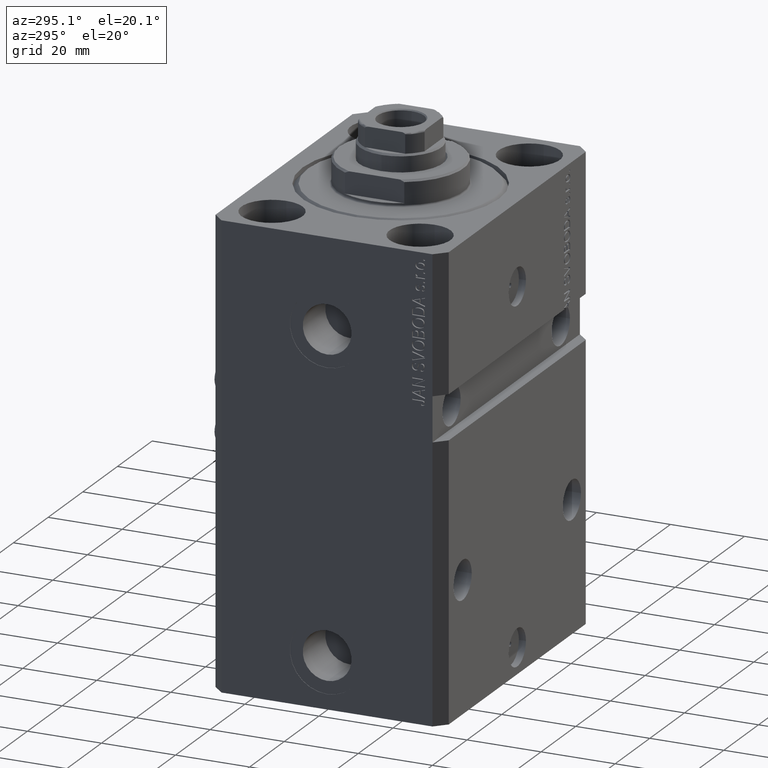
[diagram: clean part render]
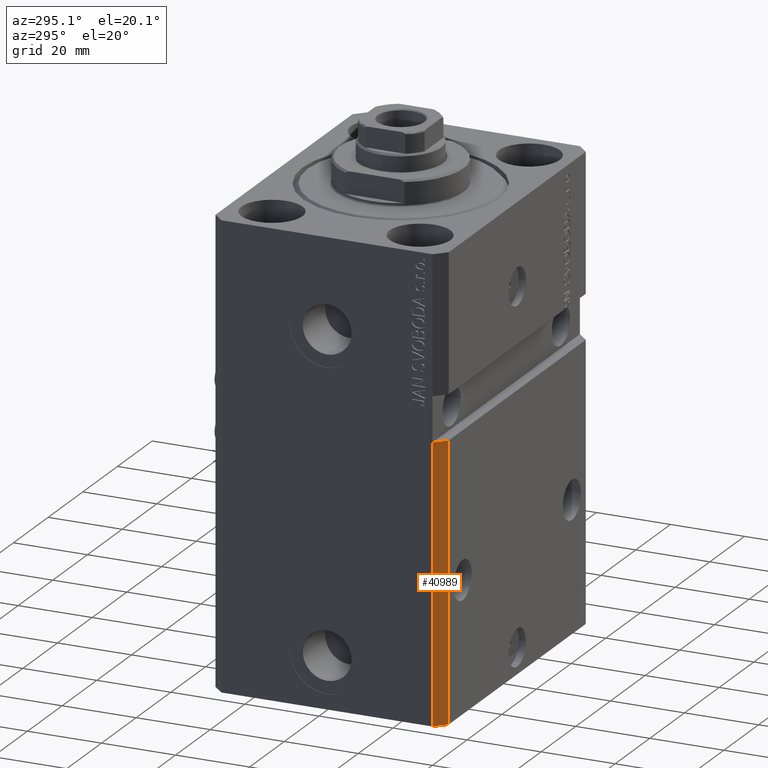
[diagram: same view with one face highlighted and labeled with its STEP entity id]
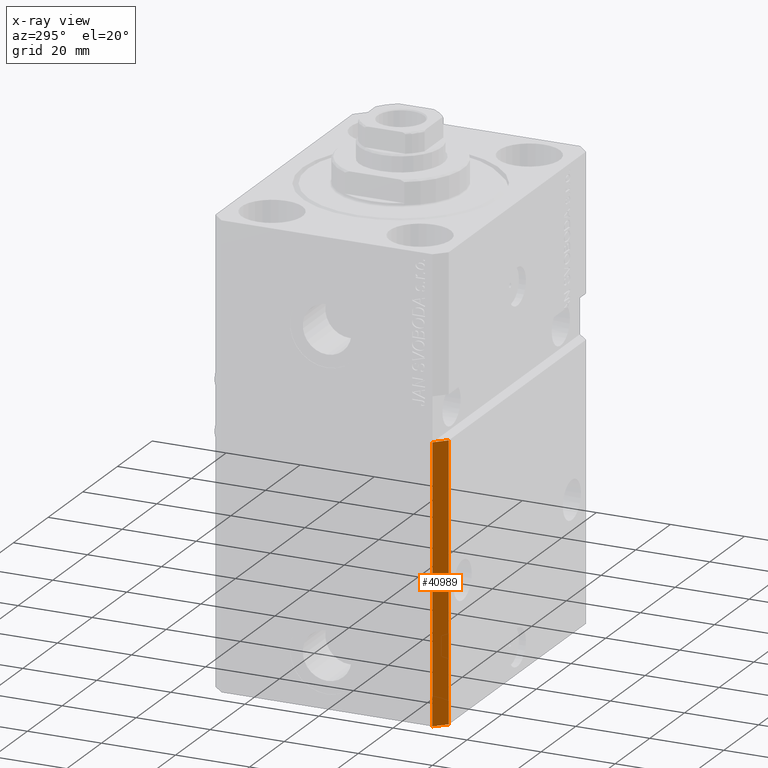
[diagram: x-ray of the same camera — body ghosted, the highlighted face saturated]
A machine part, auxiliary view. The second image highlights one B-rep face of the part: STEP entity #40989.
The next image is the same camera in x-ray: the body ghosted, the highlighted face saturated — about 0% of this face is hidden behind the body in this view.
In plain terms, the highlighted planar face has unit normal (-0.7071, -0.7071, 0).
Its self-contained STEP definition (entity closure, byte-faithful):
#744 = VERTEX_POINT ( 'NONE', #1247 ) ;
#1247 = CARTESIAN_POINT ( 'NONE',  ( -42.50000000000000000, -28.50000000000000000, -123.0000000000000000 ) ) ;
#1533 = VECTOR ( 'NONE', #12042, 1000.000000000000000 ) ;
#2229 = EDGE_CURVE ( 'NONE', #744, #43945, #18669, .T. ) ;
#3343 = CARTESIAN_POINT ( 'NONE',  ( -39.50000000000000711, -31.50000000000000000, -123.0000000000000000 ) ) ;
#3609 = PLANE ( 'NONE',  #14927 ) ;
#4903 = CARTESIAN_POINT ( 'NONE',  ( -42.50000000000000000, -28.50000000000000000, -123.0000000000000000 ) ) ;
#8968 = VECTOR ( 'NONE', #30504, 1000.000000000000000 ) ;
#10555 = LINE ( 'NONE', #47708, #18736 ) ;
#12042 = DIRECTION ( 'NONE',  ( 0.000000000000000000, 0.000000000000000000, 1.000000000000000000 ) ) ;
#12287 = EDGE_CURVE ( 'NONE', #12878, #36040, #46237, .T. ) ;
#12878 = VERTEX_POINT ( 'NONE', #39400 ) ;
#14927 = AXIS2_PLACEMENT_3D ( 'NONE', #18611, #48633, #29936 ) ;
#15261 = LINE ( 'NONE', #4903, #1533 ) ;
#15621 = ORIENTED_EDGE ( 'NONE', *, *, #24675, .T. ) ;
#17598 = ORIENTED_EDGE ( 'NONE', *, *, #2229, .T. ) ;
#18611 = CARTESIAN_POINT ( 'NONE',  ( -42.50000000000000000, -28.50000000000000000, -123.0000000000000000 ) ) ;
#18669 = LINE ( 'NONE', #48687, #27110 ) ;
#18736 = VECTOR ( 'NONE', #21606, 1000.000000000000000 ) ;
#19075 = EDGE_LOOP ( 'NONE', ( #42556, #44978, #17598, #15621 ) ) ;
#21606 = DIRECTION ( 'NONE',  ( 0.000000000000000000, 0.000000000000000000, 1.000000000000000000 ) ) ;
#24474 = CARTESIAN_POINT ( 'NONE',  ( -39.50000000000000000, -31.50000000000000711, -48.99999999999999289 ) ) ;
#24675 = EDGE_CURVE ( 'NONE', #43945, #36040, #10555, .T. ) ;
#26294 = DIRECTION ( 'NONE',  ( 0.7071067811865471286, -0.7071067811865479058, 0.000000000000000000 ) ) ;
#27110 = VECTOR ( 'NONE', #26294, 1000.000000000000000 ) ;
#29936 = DIRECTION ( 'NONE',  ( 0.7071067811865472397, -0.7071067811865479058, 0.000000000000000000 ) ) ;
#30504 = DIRECTION ( 'NONE',  ( 0.7071067811865472397, -0.7071067811865479058, 1.154479749032186513E-16 ) ) ;
#36040 = VERTEX_POINT ( 'NONE', #24474 ) ;
#37306 = FACE_OUTER_BOUND ( 'NONE', #19075, .T. ) ;
#37893 = CARTESIAN_POINT ( 'NONE',  ( -42.50000000000000711, -28.49999999999999289, -48.99999999999998579 ) ) ;
#39400 = CARTESIAN_POINT ( 'NONE',  ( -42.50000000000000000, -28.50000000000000711, -48.99999999999999289 ) ) ;
#40989 = ADVANCED_FACE ( 'NONE', ( #37306 ), #3609, .T. ) ;
#42556 = ORIENTED_EDGE ( 'NONE', *, *, #12287, .F. ) ;
#43758 = EDGE_CURVE ( 'NONE', #744, #12878, #15261, .T. ) ;
#43945 = VERTEX_POINT ( 'NONE', #3343 ) ;
#44978 = ORIENTED_EDGE ( 'NONE', *, *, #43758, .F. ) ;
#46237 = LINE ( 'NONE', #37893, #8968 ) ;
#47708 = CARTESIAN_POINT ( 'NONE',  ( -39.50000000000000711, -31.50000000000000000, -123.0000000000000000 ) ) ;
#48633 = DIRECTION ( 'NONE',  ( -0.7071067811865479058, -0.7071067811865472397, 0.000000000000000000 ) ) ;
#48687 = CARTESIAN_POINT ( 'NONE',  ( -42.50000000000000000, -28.50000000000000000, -123.0000000000000000 ) ) ;